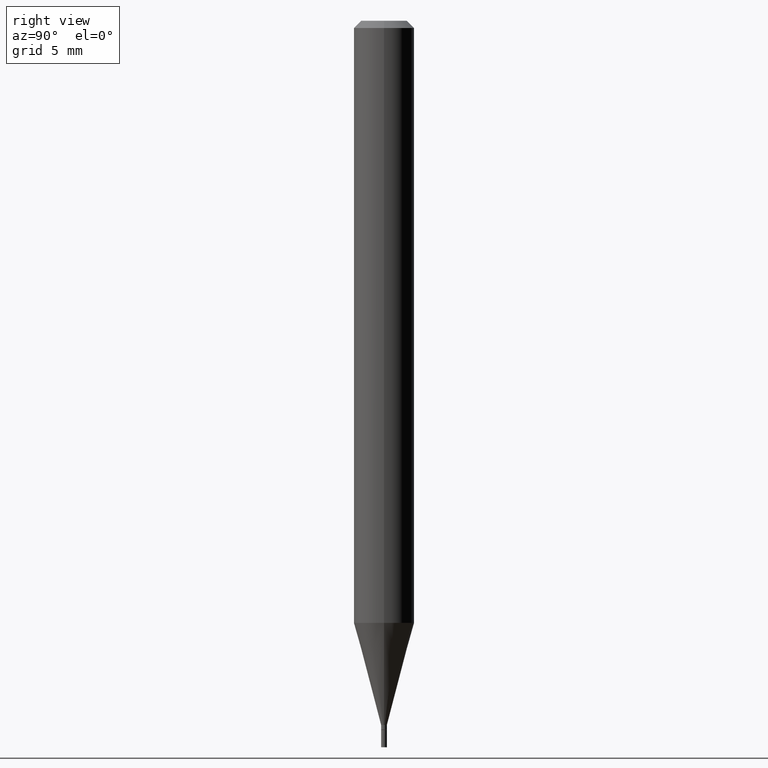
[diagram: clean part render]
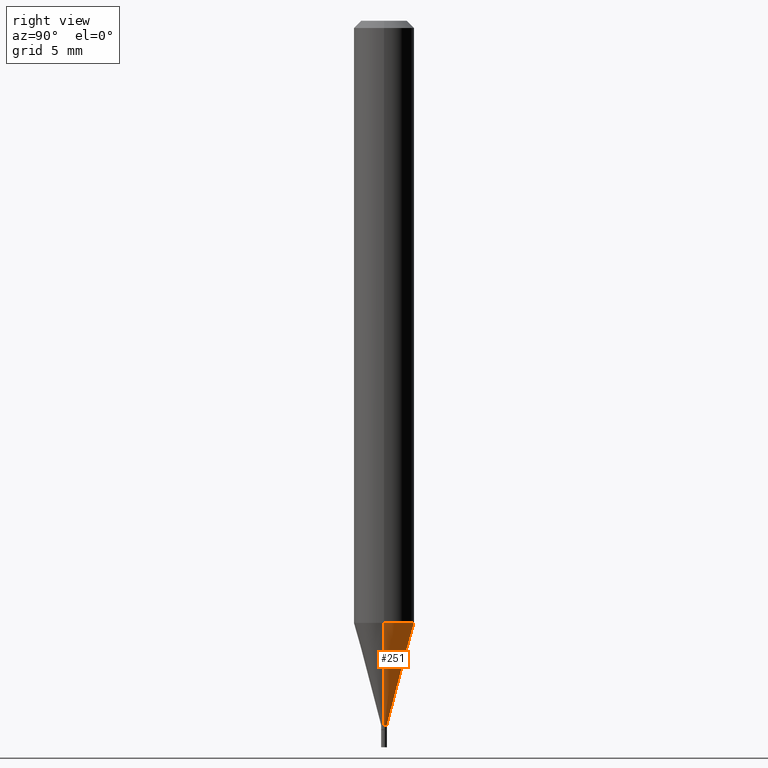
[diagram: same view with one face highlighted and labeled with its STEP entity id]
A machine part, right view. The second image highlights one B-rep face of the part: STEP entity #251.
In plain terms, the highlighted conical surface has half-angle 15 deg.
Its self-contained STEP definition (entity closure, byte-faithful):
#4 = DIRECTION ( 'NONE',  ( -2.445468806185136597E-29, 3.491481338843145583E-15, 1.000000000000000000 ) ) ;
#15 = CARTESIAN_POINT ( 'NONE',  ( -0.005999999999999919460, -4.465144582235785416E-15, -1.454000000000000181 ) ) ;
#38 = DIRECTION ( 'NONE',  ( -2.445468806185136597E-29, 3.491481338843145583E-15, 1.000000000000000000 ) ) ;
#45 = EDGE_CURVE ( 'NONE', #456, #132, #464, .T. ) ;
#46 = DIRECTION ( 'NONE',  ( -2.445468806185136597E-29, 3.491481338843145583E-15, 1.000000000000000000 ) ) ;
#52 = LINE ( 'NONE', #94, #135 ) ;
#79 = DIRECTION ( 'NONE',  ( 1.000000000000000000, -6.982962677686265133E-15, 0.000000000000000000 ) ) ;
#82 = CIRCLE ( 'NONE', #396, 0.06250000000000000000 ) ;
#91 = VECTOR ( 'NONE', #281, 39.37007874015748854 ) ;
#92 = EDGE_CURVE ( 'NONE', #132, #344, #52, .T. ) ;
#94 = CARTESIAN_POINT ( 'NONE',  ( -0.005999999999999919460, -5.033981302532329066E-15, -1.454000000000000181 ) ) ;
#104 = CARTESIAN_POINT ( 'NONE',  ( 3.555711644193189020E-29, -5.076613866677933538E-15, -1.454000000000000181 ) ) ;
#111 = CARTESIAN_POINT ( 'NONE',  ( 3.555711644193189020E-29, -5.076613866677933538E-15, -1.454000000000000181 ) ) ;
#132 = VERTEX_POINT ( 'NONE', #15 ) ;
#135 = VECTOR ( 'NONE', #200, 39.37007874015748854 ) ;
#144 = CARTESIAN_POINT ( 'NONE',  ( 0.005999999999999919460, -5.118511642744051201E-15, -1.454000000000000181 ) ) ;
#151 = ORIENTED_EDGE ( 'NONE', *, *, #92, .T. ) ;
#194 = DIRECTION ( 'NONE',  ( 1.000000000000000000, -6.982962677686270655E-15, 0.000000000000000000 ) ) ;
#200 = DIRECTION ( 'NONE',  ( -0.2588190451025212391, 5.211531920934549464E-15, 0.9659258262890679791 ) ) ;
#223 = CARTESIAN_POINT ( 'NONE',  ( -0.06250000000000000000, -3.896307861939242555E-15, -1.243139129372358598 ) ) ;
#241 = AXIS2_PLACEMENT_3D ( 'NONE', #111, #4, #79 ) ;
#242 = ORIENTED_EDGE ( 'NONE', *, *, #273, .F. ) ;
#247 = CONICAL_SURFACE ( 'NONE', #424, 0.005999999999999919460, 0.2617993877991499629 ) ;
#251 = ADVANCED_FACE ( 'NONE', ( #463 ), #247, .T. ) ;
#273 = EDGE_CURVE ( 'NONE', #456, #398, #427, .T. ) ;
#281 = DIRECTION ( 'NONE',  ( 0.2588190451025212391, 1.565188264969622362E-15, 0.9659258262890679791 ) ) ;
#296 = ORIENTED_EDGE ( 'NONE', *, *, #411, .F. ) ;
#302 = CARTESIAN_POINT ( 'NONE',  ( 3.040057962628251805E-29, -4.340397071789305171E-15, -1.243139129372358598 ) ) ;
#315 = DIRECTION ( 'NONE',  ( 1.000000000000000000, -6.982962677686265133E-15, 0.000000000000000000 ) ) ;
#344 = VERTEX_POINT ( 'NONE', #223 ) ;
#394 = CARTESIAN_POINT ( 'NONE',  ( 0.06250000000000000000, -4.776832239144696052E-15, -1.243139129372358598 ) ) ;
#396 = AXIS2_PLACEMENT_3D ( 'NONE', #302, #46, #194 ) ;
#398 = VERTEX_POINT ( 'NONE', #394 ) ;
#411 = EDGE_CURVE ( 'NONE', #398, #344, #82, .T. ) ;
#423 = ORIENTED_EDGE ( 'NONE', *, *, #45, .T. ) ;
#424 = AXIS2_PLACEMENT_3D ( 'NONE', #104, #38, #315 ) ;
#427 = LINE ( 'NONE', #144, #91 ) ;
#439 = EDGE_LOOP ( 'NONE', ( #423, #151, #296, #242 ) ) ;
#442 = CARTESIAN_POINT ( 'NONE',  ( 0.005999999999999919460, -5.118511642744051201E-15, -1.454000000000000181 ) ) ;
#456 = VERTEX_POINT ( 'NONE', #442 ) ;
#463 = FACE_OUTER_BOUND ( 'NONE', #439, .T. ) ;
#464 = CIRCLE ( 'NONE', #241, 0.005999999999999919460 ) ;